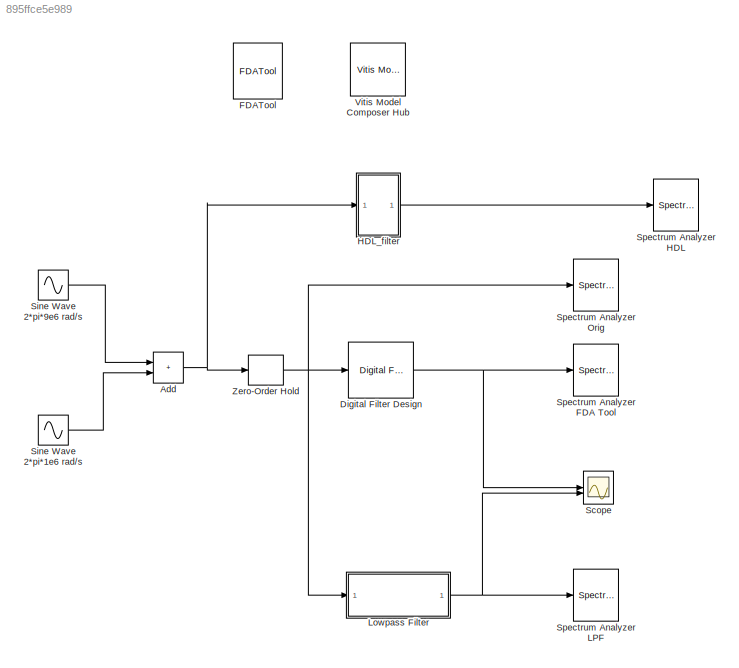
MODEL slx_895ffce5e989
KIND model
CONFIG AbsTol = auto
CONFIG EnableMultiTasking = on
CONFIG FixedStep = auto
CONFIG MaxStep = auto
CONFIG MinStep = auto
CONFIG RelTol = 1e-3
CONFIG SampleTimeConstraint = Unconstrained
CONFIG SolverName = ode45
CONFIG StartTime = 0.0
CONFIG StopTime = 10000/20e6
BLOCK [Sum] Add
  IconShape = rectangular
BLOCK [Reference] Digital Filter Design  REF=dspfdesign/Digital
Filter Design
  SourceBlock = dspfdesign/Digital\nFilter Design
  SourceType = Digital Filter Design
  UserDataPersistent = on
BLOCK [Reference] FDATool  REF=hdlUtilities/FDATool
  SourceBlock = hdlUtilities/FDATool
  SourceType = Xilinx FDATool Interface Block
  UserDataPersistent = on
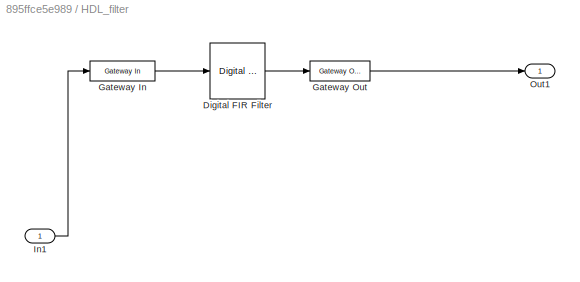
BLOCK [SubSystem] HDL_filter
BLOCK [Reference] HDL_filter/Digital FIR Filter  REF=hdlBasic/Digital FIR Filter
  SourceBlock = hdlBasic/Digital FIR Filter
  SourceType = FIR Block
BLOCK [Reference] HDL_filter/Gateway In  REF=hdlBasic/Gateway In
  SourceBlock = hdlBasic/Gateway In
  SourceType = Gateway In Block
BLOCK [Reference] HDL_filter/Gateway Out  REF=hdlBasic/Gateway Out
  SourceBlock = hdlBasic/Gateway Out
  SourceType = Gateway Out Block
BLOCK [Inport] HDL_filter/In1
BLOCK [Outport] HDL_filter/Out1
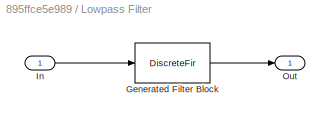
BLOCK [SubSystem] Lowpass Filter
  CopyFcn = fdesignblkfcn(gcbh, {'CopyFcn'});
  DialogController = fdesignblkfcn
  InitFcn = fdesignblkfcn(gcbh, {'InitFcn'});
  UserDataPersistent = on
BLOCK [DiscreteFir] Lowpass Filter/Generated Filter Block
  Coefficients = [0.006802019168867246 -0.0018271019166862348 -0.051845131678638426 0.0057350837125695478 0.29497742250115677 0.49199741364352395 0.29497742250115677 0.0057350837125695478 -0.051845131678638426 -0.0018271019166862348 0.006802019168867246]
  InputPortMap = u0
  InputProcessing = Columns as channels (frame based)
  OutputPortMap = o0
  Tag = BlockMethodSubSystem
BLOCK [Inport] Lowpass Filter/In
BLOCK [Outport] Lowpass Filter/Out
  VectorParamsAs1DForOutWhenUnconnected = off
BLOCK [Scope] Scope
  Floating = off
  NumInputPorts = 2
  ScopeSpecificationString = Simulink.scopes.TimeScopeBlockCfg('CurrentConfiguration', extmgr.ConfigurationSet(extmgr.Configuration('Core','General UI',true,'DisplayFullSourceName',false,'ShowMainToolbar',true),extmgr.Configuration('Sources','WiredSimulink',true,'DataLogging',false,'DataLoggingVariableName','ScopeData','DataLoggingLimitDataPoints',true,'DataLoggingMaxPoints','5000','DataLoggingDecimateData',true,'DataLoggingD...<+2757ch>
BLOCK [Sin] Sine Wave 2*pi*1e6 rad//s
  Frequency = 2*pi*1e6
  SampleTime = 0
BLOCK [Sin] Sine Wave 2*pi*9e6 rad//s
  Frequency = 2*pi*9e6
  SampleTime = 0
BLOCK [SpectrumAnalyzer] Spectrum Analyzer FDA Tool
  AllowFFTLengthLessThanSamplesPerUpdate = on
  AveragingMethod = Exponential
  ChannelNames = [""]
  DefaultConfigurationName = spbscopes.SpectrumAnalyzerBlockCfg
  GraphicalSettings = {"GraphicalSettings":{"SpectralMask":{"CustomReferenceLevel":"0","EnabledMasks":"None","LowerMask":"-Inf","MaskFrequencyOffset":"0","ReferenceLevel":"Custom","SelectedChannel":"1","UpperMask":"Inf"},"Style":{"AxesColor":"[0 0 0]","DefaultMarker":"none","DisplayName":"","LabelsColor":"[0.686274509803922 0.686274509803922 0.686274509803922]","Line":"1","LineColor":"[[1      0.9098     0.39216]]","Li...<+224ch>  <repeated x4 — deduplicated; at blocks: Spectrum Analyzer FDA Tool, Spectrum Analyzer HDL, Spectrum Analyzer LPF, Spectrum Analyzer Orig>
  Method = Welch
  SampleRate = 20000000
  ScopeSpecificationString = spbscopes.SpectrumAnalyzerBlockCfg('CurrentConfiguration', extmgr.ConfigurationSet(extmgr.Configuration('Core','General UI',true,'FigureColor',[0.16        0.16        0.16]),extmgr.Configuration('Visuals','Spectrum',true,'Title','','YLabel','','MinYLim','-187.0838','MaxYLim','47.1991','Legend',false,'AxesProperties',struct('XGrid',{'on','on'},'YGrid',{'on','on'},'ZGrid',{'on','on'},'Color',{[0 0 ...<+2331ch>
  Visible = on
  WasSavedAsWebScope = on
  WindowPosition = [833 109 560 420]
  YLimits = [-187.0838,47.1991]
BLOCK [SpectrumAnalyzer] Spectrum Analyzer HDL
  AllowFFTLengthLessThanSamplesPerUpdate = on
  AveragingMethod = Exponential
  ChannelNames = [""]
  DefaultConfigurationName = spbscopes.SpectrumAnalyzerBlockCfg
  Method = Welch
  SampleRate = 20000000
  ScopeSpecificationString = spbscopes.SpectrumAnalyzerBlockCfg('CurrentConfiguration', extmgr.ConfigurationSet(extmgr.Configuration('Core','General UI',true,'FigureColor',[0.16        0.16        0.16]),extmgr.Configuration('Visuals','Spectrum',true,'Title','','YLabel','','MinYLim','-207.5529','MaxYLim','49.4734','Legend',false,'AxesProperties',struct('XGrid',{'on','on'},'YGrid',{'on','on'},'ZGrid',{'on','on'},'Color',{[0 0 ...<+2331ch>
  Visible = on
  WasSavedAsWebScope = on
  WindowPosition = [241 103 568 420]
  YLimits = [-207.5529,49.4734]
BLOCK [SpectrumAnalyzer] Spectrum Analyzer LPF
  AllowFFTLengthLessThanSamplesPerUpdate = on
  AveragingMethod = Exponential
  ChannelNames = [""]
  DefaultConfigurationName = spbscopes.SpectrumAnalyzerBlockCfg
  Method = Welch
  SampleRate = 20000000
  ScopeSpecificationString = spbscopes.SpectrumAnalyzerBlockCfg('CurrentConfiguration', extmgr.ConfigurationSet(extmgr.Configuration('Core','General UI',true,'FigureColor',[0.16        0.16        0.16]),extmgr.Configuration('Visuals','Spectrum',true,'Title','','YLabel','','MinYLim','-187.1897','MaxYLim','47.1957','Legend',false,'AxesProperties',struct('XGrid',{'on','on'},'YGrid',{'on','on'},'ZGrid',{'on','on'},'Color',{[0 0 ...<+2332ch>
  Visible = on
  WasSavedAsWebScope = on
  WindowPosition = [1026 106 568 420]
  YLimits = [-187.1897,47.1957]
BLOCK [SpectrumAnalyzer] Spectrum Analyzer Orig
  AllowFFTLengthLessThanSamplesPerUpdate = on
  AveragingMethod = Exponential
  ChannelNames = [""]
  DefaultConfigurationName = spbscopes.SpectrumAnalyzerBlockCfg
  Method = Welch
  SampleRate = 20000000
  ScopeSpecificationString = spbscopes.SpectrumAnalyzerBlockCfg('CurrentConfiguration', extmgr.ConfigurationSet(extmgr.Configuration('Core','General UI',true,'FigureColor',[0.16        0.16        0.16]),extmgr.Configuration('Visuals','Spectrum',true,'Title','','YLabel','','MinYLim','-153.2838','MaxYLim','43.4257','Legend',false,'AxesProperties',struct('XGrid',{'on','on'},'YGrid',{'on','on'},'ZGrid',{'on','on'},'Color',{[0 0 ...<+2331ch>
  Visible = on
  WasSavedAsWebScope = on
  WindowPosition = [241 103 568 420]
  YLimits = [-153.2838,43.4257]
BLOCK [Reference] Vitis Model Composer Hub  REF=vmcUtilities/Vitis Model Composer Hub
  SourceBlock = vmcUtilities/Vitis Model Composer Hub
  SourceType = VMC Hub
  Tag = genX
  UserDataPersistent = on
BLOCK [ZeroOrderHold] Zero-Order Hold
  SampleTime = 1/20e6
NET Add:1 -> HDL_filter:1, Zero-Order Hold:1
NET Digital Filter Design:1 -> Scope:1, Spectrum Analyzer FDA Tool:1
LINE HDL_filter/Digital FIR Filter:1 -> HDL_filter/Gateway Out:1
LINE HDL_filter/Gateway In:1 -> HDL_filter/Digital FIR Filter:1
LINE HDL_filter/Gateway Out:1 -> HDL_filter/Out1:1
LINE HDL_filter/In1:1 -> HDL_filter/Gateway In:1
LINE HDL_filter:1 -> Spectrum Analyzer HDL:1
NET Lowpass Filter:1 -> Scope:2, Spectrum Analyzer LPF:1
LINE Sine Wave 2*pi*1e6 rad//s:1 -> Add:2
LINE Sine Wave 2*pi*9e6 rad//s:1 -> Add:1
NET Zero-Order Hold:1 -> Digital Filter Design:1, Lowpass Filter:1, Spectrum Analyzer Orig:1
note: NET lines group one-source signal fan-out (src -> all destinations, sorted); 1:1 wires keep LINE
